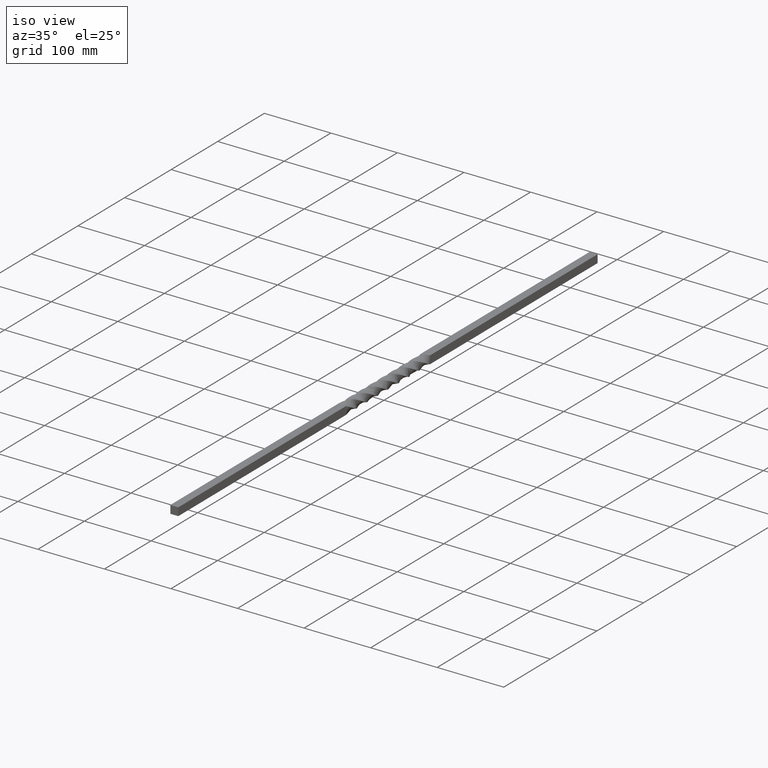
[diagram: clean part render]
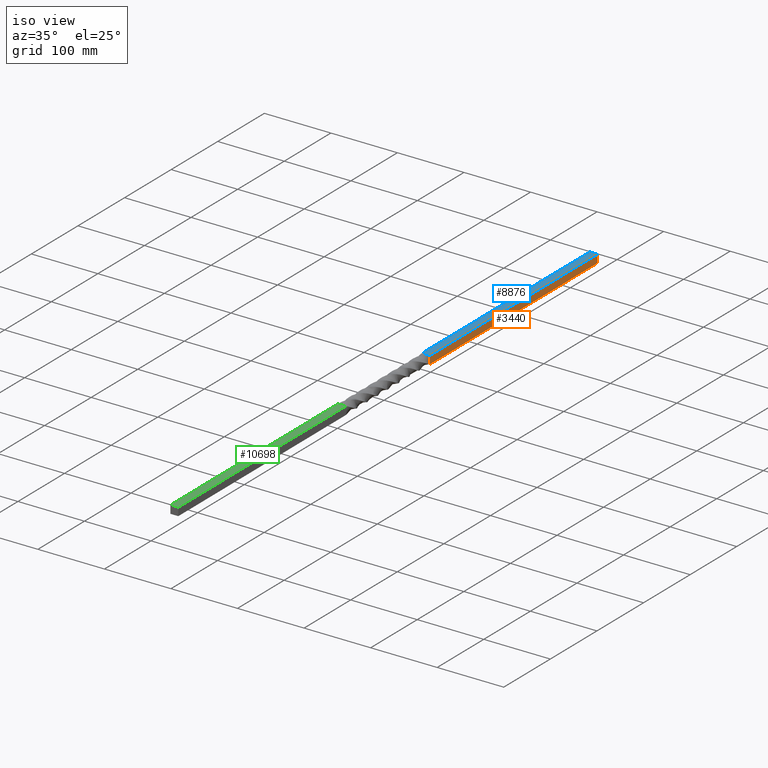
[diagram: same view with three faces highlighted in distinct colors, each labeled with its STEP entity id]
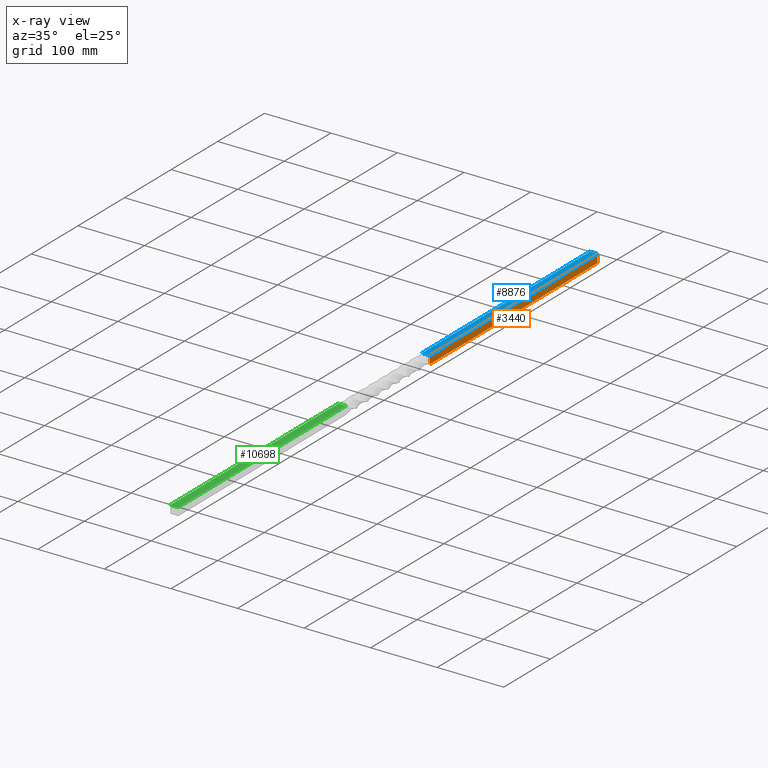
[diagram: x-ray of the same camera — body ghosted, the three highlighted faces saturated]
A machine part, iso view with three faces highlighted in distinct colors.
The next image is the same camera in x-ray (body ghosted, the three faces saturated) — at least one of them is partly hidden behind the body in this view.
Their STEP definitions:

[orange] entity #3440 — the highlighted planar face has unit normal (-1, 0, -0).
#992 = CARTESIAN_POINT ( 'NONE',  ( 6.000000000000000888, 916.9705627633168206, 6.000000000000000888 ) ) ;
#1941 = CARTESIAN_POINT ( 'NONE',  ( 6.000000000000000888, 90.00000000000000000, 0.000000000000000000 ) ) ;
#2161 = CARTESIAN_POINT ( 'NONE',  ( 6.000000006995461987, 916.9705627633168206, -5.999999997126786333 ) ) ;
#2166 = VERTEX_POINT ( 'NONE', #8083 ) ;
#2199 = DIRECTION ( 'NONE',  ( -0.000000000000000000, -1.000000000000000000, -0.000000000000000000 ) ) ;
#2868 = CARTESIAN_POINT ( 'NONE',  ( 6.000000000000000888, 450.0000000000000000, 6.000000000000000888 ) ) ;
#3440 = ADVANCED_FACE ( 'NONE', ( #8310 ), #9568, .F. ) ;
#3476 = VERTEX_POINT ( 'NONE', #4347 ) ;
#3892 = DIRECTION ( 'NONE',  ( -0.000000000000000000, -1.000000000000000000, -0.000000000000000000 ) ) ;
#4347 = CARTESIAN_POINT ( 'NONE',  ( 6.000000000000000888, 450.0000000000000000, 6.000000000000000888 ) ) ;
#4904 = AXIS2_PLACEMENT_3D ( 'NONE', #992, #5277, #6124 ) ;
#5028 = CARTESIAN_POINT ( 'NONE',  ( 6.000000006995461987, 450.0000000000000000, -5.999999997126786333 ) ) ;
#5277 = DIRECTION ( 'NONE',  ( -1.000000000000000000, 0.000000000000000000, -5.829550530040476304E-10 ) ) ;
#5754 = ORIENTED_EDGE ( 'NONE', *, *, #7787, .T. ) ;
#6070 = DIRECTION ( 'NONE',  ( -0.000000000000000000, 0.000000000000000000, -1.000000000000000000 ) ) ;
#6118 = EDGE_CURVE ( 'NONE', #3476, #6677, #9865, .T. ) ;
#6124 = DIRECTION ( 'NONE',  ( -5.829550530040476304E-10, 0.000000000000000000, 1.000000000000000000 ) ) ;
#6177 = DIRECTION ( 'NONE',  ( 5.829550530040476304E-10, 0.000000000000000000, -1.000000000000000000 ) ) ;
#6677 = VERTEX_POINT ( 'NONE', #5028 ) ;
#7253 = CARTESIAN_POINT ( 'NONE',  ( 6.000000000000000888, 916.9705627633168206, 6.000000000000000888 ) ) ;
#7572 = LINE ( 'NONE', #2161, #10075 ) ;
#7718 = VECTOR ( 'NONE', #2199, 1000.000000000000000 ) ;
#7787 = EDGE_CURVE ( 'NONE', #2166, #9229, #7863, .T. ) ;
#7863 = LINE ( 'NONE', #1941, #10626 ) ;
#8018 = VECTOR ( 'NONE', #6177, 1000.000000000000000 ) ;
#8083 = CARTESIAN_POINT ( 'NONE',  ( 6.000000000000000888, 90.00000000000000000, 6.000000000000000888 ) ) ;
#8310 = FACE_OUTER_BOUND ( 'NONE', #8916, .T. ) ;
#8329 = CARTESIAN_POINT ( 'NONE',  ( 6.000000006995461987, 90.00000000000000000, -5.999999997126786333 ) ) ;
#8578 = ORIENTED_EDGE ( 'NONE', *, *, #6118, .F. ) ;
#8633 = LINE ( 'NONE', #7253, #7718 ) ;
#8916 = EDGE_LOOP ( 'NONE', ( #8578, #10437, #5754, #9603 ) ) ;
#8998 = EDGE_CURVE ( 'NONE', #3476, #2166, #8633, .T. ) ;
#9184 = EDGE_CURVE ( 'NONE', #6677, #9229, #7572, .T. ) ;
#9229 = VERTEX_POINT ( 'NONE', #8329 ) ;
#9568 = PLANE ( 'NONE',  #4904 ) ;
#9603 = ORIENTED_EDGE ( 'NONE', *, *, #9184, .F. ) ;
#9865 = LINE ( 'NONE', #2868, #8018 ) ;
#10075 = VECTOR ( 'NONE', #3892, 1000.000000000000000 ) ;
#10437 = ORIENTED_EDGE ( 'NONE', *, *, #8998, .T. ) ;
#10626 = VECTOR ( 'NONE', #6070, 1000.000000000000000 ) ;

[blue] entity #8876 — the highlighted planar face has unit normal (0, 0, -1).
#375 = LINE ( 'NONE', #4418, #6967 ) ;
#559 = CARTESIAN_POINT ( 'NONE',  ( -6.000000006995406032, 450.0000000000000000, 5.999999997126741924 ) ) ;
#1859 = ORIENTED_EDGE ( 'NONE', *, *, #5733, .F. ) ;
#2166 = VERTEX_POINT ( 'NONE', #8083 ) ;
#2199 = DIRECTION ( 'NONE',  ( -0.000000000000000000, -1.000000000000000000, -0.000000000000000000 ) ) ;
#2244 = LINE ( 'NONE', #5763, #8573 ) ;
#2245 = ORIENTED_EDGE ( 'NONE', *, *, #2812, .T. ) ;
#2435 = DIRECTION ( 'NONE',  ( 1.000000000000000000, 0.000000000000000000, -0.000000000000000000 ) ) ;
#2540 = VERTEX_POINT ( 'NONE', #6350 ) ;
#2812 = EDGE_CURVE ( 'NONE', #9508, #2166, #2244, .T. ) ;
#3185 = EDGE_LOOP ( 'NONE', ( #1859, #8985, #2245, #3296 ) ) ;
#3296 = ORIENTED_EDGE ( 'NONE', *, *, #8998, .F. ) ;
#3387 = DIRECTION ( 'NONE',  ( -1.000000000000000000, 0.000000000000000000, -2.394382433982011307E-10 ) ) ;
#3390 = EDGE_CURVE ( 'NONE', #2540, #9508, #375, .T. ) ;
#3476 = VERTEX_POINT ( 'NONE', #4347 ) ;
#4347 = CARTESIAN_POINT ( 'NONE',  ( 6.000000000000000888, 450.0000000000000000, 6.000000000000000888 ) ) ;
#4418 = CARTESIAN_POINT ( 'NONE',  ( -6.000000006995406032, 916.9705627633168206, 5.999999997126741924 ) ) ;
#4896 = PLANE ( 'NONE',  #10330 ) ;
#5686 = FACE_OUTER_BOUND ( 'NONE', #3185, .T. ) ;
#5733 = EDGE_CURVE ( 'NONE', #2540, #3476, #6540, .T. ) ;
#5763 = CARTESIAN_POINT ( 'NONE',  ( 0.000000000000000000, 90.00000000000000000, 6.000000000000000888 ) ) ;
#6258 = VECTOR ( 'NONE', #6452, 1000.000000000000000 ) ;
#6350 = CARTESIAN_POINT ( 'NONE',  ( -6.000000006995406032, 450.0000000000000000, 5.999999997126741924 ) ) ;
#6452 = DIRECTION ( 'NONE',  ( 1.000000000000000000, -0.000000000000000000, 2.394382433982011307E-10 ) ) ;
#6540 = LINE ( 'NONE', #559, #6258 ) ;
#6967 = VECTOR ( 'NONE', #8672, 1000.000000000000000 ) ;
#7253 = CARTESIAN_POINT ( 'NONE',  ( 6.000000000000000888, 916.9705627633168206, 6.000000000000000888 ) ) ;
#7554 = DIRECTION ( 'NONE',  ( 2.394382433982011307E-10, 0.000000000000000000, -1.000000000000000000 ) ) ;
#7718 = VECTOR ( 'NONE', #2199, 1000.000000000000000 ) ;
#8083 = CARTESIAN_POINT ( 'NONE',  ( 6.000000000000000888, 90.00000000000000000, 6.000000000000000888 ) ) ;
#8305 = CARTESIAN_POINT ( 'NONE',  ( -6.000000006995406032, 916.9705627633168206, 5.999999997126741924 ) ) ;
#8573 = VECTOR ( 'NONE', #2435, 1000.000000000000000 ) ;
#8633 = LINE ( 'NONE', #7253, #7718 ) ;
#8672 = DIRECTION ( 'NONE',  ( -0.000000000000000000, -1.000000000000000000, -0.000000000000000000 ) ) ;
#8876 = ADVANCED_FACE ( 'NONE', ( #5686 ), #4896, .F. ) ;
#8985 = ORIENTED_EDGE ( 'NONE', *, *, #3390, .T. ) ;
#8998 = EDGE_CURVE ( 'NONE', #3476, #2166, #8633, .T. ) ;
#9508 = VERTEX_POINT ( 'NONE', #9539 ) ;
#9539 = CARTESIAN_POINT ( 'NONE',  ( -6.000000006995406032, 89.99999998638266163, 5.999999997126741924 ) ) ;
#10330 = AXIS2_PLACEMENT_3D ( 'NONE', #8305, #7554, #3387 ) ;

[green] entity #10698 — the highlighted planar face has unit normal (0, 0, -1).
#247 = DIRECTION ( 'NONE',  ( 1.000000000000000000, 0.000000000000000000, -0.000000000000000000 ) ) ;
#674 = DIRECTION ( 'NONE',  ( 2.394382433982011307E-10, 0.000000000000000000, -1.000000000000000000 ) ) ;
#1205 = CARTESIAN_POINT ( 'NONE',  ( -6.000000006995406032, -450.0000000000000000, 5.999999997126741924 ) ) ;
#1424 = LINE ( 'NONE', #8721, #3751 ) ;
#1814 = CARTESIAN_POINT ( 'NONE',  ( 6.000000000000000888, -916.9705627633168206, 6.000000000000000888 ) ) ;
#1963 = DIRECTION ( 'NONE',  ( -0.000000000000000000, 1.000000000000000000, -0.000000000000000000 ) ) ;
#2028 = ORIENTED_EDGE ( 'NONE', *, *, #4260, .F. ) ;
#3366 = EDGE_CURVE ( 'NONE', #7700, #5409, #5099, .T. ) ;
#3735 = CARTESIAN_POINT ( 'NONE',  ( 6.000000000000000888, -450.0000000000000000, 6.000000000000000888 ) ) ;
#3751 = VECTOR ( 'NONE', #1963, 1000.000000000000000 ) ;
#3771 = VECTOR ( 'NONE', #247, 1000.000000000000000 ) ;
#4260 = EDGE_CURVE ( 'NONE', #7216, #7700, #1424, .T. ) ;
#4429 = EDGE_LOOP ( 'NONE', ( #8559, #9832, #4865, #2028 ) ) ;
#4588 = EDGE_CURVE ( 'NONE', #7216, #5173, #8552, .T. ) ;
#4865 = ORIENTED_EDGE ( 'NONE', *, *, #3366, .F. ) ;
#5081 = CARTESIAN_POINT ( 'NONE',  ( 6.000000000000000888, -90.00000000000000000, 6.000000000000000888 ) ) ;
#5099 = LINE ( 'NONE', #6962, #3771 ) ;
#5173 = VERTEX_POINT ( 'NONE', #3735 ) ;
#5296 = VECTOR ( 'NONE', #7739, 1000.000000000000000 ) ;
#5409 = VERTEX_POINT ( 'NONE', #5081 ) ;
#5550 = DIRECTION ( 'NONE',  ( -1.000000000000000000, -0.000000000000000000, -2.394382433982011307E-10 ) ) ;
#5832 = AXIS2_PLACEMENT_3D ( 'NONE', #8151, #674, #5550 ) ;
#6803 = CARTESIAN_POINT ( 'NONE',  ( -6.000000006995406032, -89.99999998638266163, 5.999999997126741924 ) ) ;
#6962 = CARTESIAN_POINT ( 'NONE',  ( 0.000000000000000000, -90.00000000000000000, 6.000000000000000888 ) ) ;
#7032 = LINE ( 'NONE', #1814, #5296 ) ;
#7147 = FACE_OUTER_BOUND ( 'NONE', #4429, .T. ) ;
#7216 = VERTEX_POINT ( 'NONE', #10696 ) ;
#7259 = DIRECTION ( 'NONE',  ( 1.000000000000000000, 0.000000000000000000, 2.394382433982011307E-10 ) ) ;
#7700 = VERTEX_POINT ( 'NONE', #6803 ) ;
#7739 = DIRECTION ( 'NONE',  ( -0.000000000000000000, 1.000000000000000000, -0.000000000000000000 ) ) ;
#8151 = CARTESIAN_POINT ( 'NONE',  ( -6.000000006995406032, -916.9705627633168206, 5.999999997126741924 ) ) ;
#8552 = LINE ( 'NONE', #1205, #10128 ) ;
#8559 = ORIENTED_EDGE ( 'NONE', *, *, #4588, .T. ) ;
#8721 = CARTESIAN_POINT ( 'NONE',  ( -6.000000006995406032, -916.9705627633168206, 5.999999997126741924 ) ) ;
#9135 = PLANE ( 'NONE',  #5832 ) ;
#9477 = EDGE_CURVE ( 'NONE', #5173, #5409, #7032, .T. ) ;
#9832 = ORIENTED_EDGE ( 'NONE', *, *, #9477, .T. ) ;
#10128 = VECTOR ( 'NONE', #7259, 1000.000000000000000 ) ;
#10696 = CARTESIAN_POINT ( 'NONE',  ( -6.000000006995406032, -450.0000000000000000, 5.999999997126741924 ) ) ;
#10698 = ADVANCED_FACE ( 'NONE', ( #7147 ), #9135, .F. ) ;